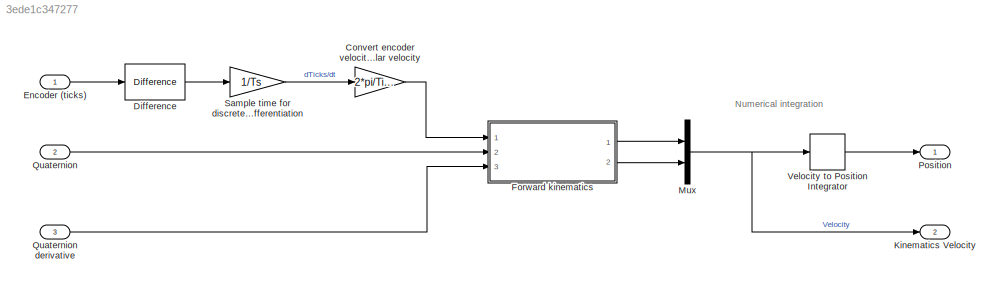
MODEL slx_3ede1c347277
KIND model
CONFIG AbsTol = auto
CONFIG EnableMultiTasking = off
CONFIG FixedStep = auto
CONFIG InitFcn = Constants_Kugle\nConstants_nominal\nParameters_General\nParameters_Controllers\nParameters_Simulation
CONFIG MaxStep = auto
CONFIG MinStep = auto
CONFIG PreLoadFcn = modelDir = fileparts(get_param(bdroot, 'FileName'));\naddpath(fullfile(modelDir,'../../Parameters'));\naddpath(fullfile(modelDir,'../../Model/generated'));\n\nConstants_Kugle\nConstants_nominal\nParameters_General\nParameters_Controllers\nParameters_Simulation
CONFIG RelTol = 1e-3
CONFIG SampleTimeConstraint = Unconstrained
CONFIG Solver = VariableStepAuto
CONFIG SolverName = VariableStepAuto
CONFIG StartTime = 0.0
CONFIG StopTime = 10.0
BLOCK [Gain] Convert encoder velocity to angular velocity
  Gain = 2*pi/TicksPrRev
  OutDataTypeStr = Inherit: Inherit via internal rule
  ParamDataTypeStr = Inherit: Inherit via internal rule
  SaturateOnIntegerOverflow = off
BLOCK [Reference] Difference   REF=simulink/Discrete/Difference
  Ports = [1, 1]
  SourceBlock = simulink/Discrete/Difference
  SourceProductBaseCode = SL
  SourceProductName = Simulink
  SourceType = Difference
BLOCK [Inport] Encoder (ticks)
  IconDisplay = Port number
  PortDimensions = 3
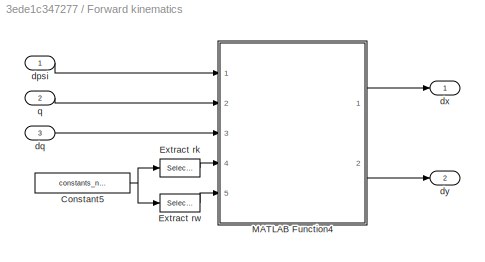
BLOCK [SubSystem] Forward kinematics
  Ports = [3, 2]
  RequestExecContextInheritance = off
BLOCK [Constant] Forward kinematics/Constant5
  Value = constants_nominal
BLOCK [Selector] Forward kinematics/Extract rk
  IndexOptions = Index vector (dialog)
  Indices = [3]
  InputPortWidth = 13
  OutputSizes = 1
  Ports = [1, 1]
BLOCK [Selector] Forward kinematics/Extract rw
  IndexOptions = Index vector (dialog)
  Indices = [9]
  InputPortWidth = 13
  OutputSizes = 1
  Ports = [1, 1]
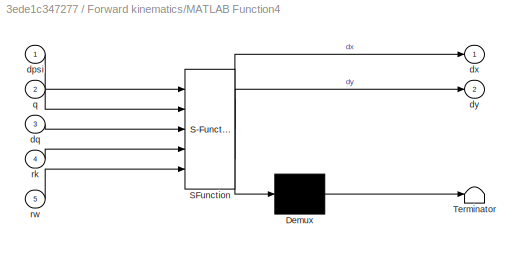
BLOCK [SubSystem] Forward kinematics/MATLAB Function4
  ErrorFcn = Stateflow.Translate.translate
  PermitHierarchicalResolution = ExplicitOnly
  Ports = [5, 2]
  RequestExecContextInheritance = off
  SFBlockType = MATLAB Function
  TreatAsAtomicUnit = on
BLOCK [Demux] Forward kinematics/MATLAB Function4/ Demux 
  Outputs = 1
  Ports = [1, 1]
BLOCK [S-Function] Forward kinematics/MATLAB Function4/ SFunction 
  EnableBusSupport = on
  FunctionName = sf_sfun
  PortCounts = [5 3]
  Ports = [5, 3]
  SFcnIsStateOwnerBlock = off
  SFunctionDeploymentMode = off
  Tag = Stateflow S-Function KinematicsIntegration 28
BLOCK [Terminator] Forward kinematics/MATLAB Function4/ Terminator 
BLOCK [Inport] Forward kinematics/MATLAB Function4/dpsi
  IconDisplay = Port number
BLOCK [Inport] Forward kinematics/MATLAB Function4/dq
  IconDisplay = Port number
  Port = 3
BLOCK [Outport] Forward kinematics/MATLAB Function4/dx
  IconDisplay = Port number
BLOCK [Outport] Forward kinematics/MATLAB Function4/dy
  IconDisplay = Port number
  Port = 2
BLOCK [Inport] Forward kinematics/MATLAB Function4/q
  IconDisplay = Port number
  Port = 2
BLOCK [Inport] Forward kinematics/MATLAB Function4/rk
  IconDisplay = Port number
  Port = 4
BLOCK [Inport] Forward kinematics/MATLAB Function4/rw
  IconDisplay = Port number
  Port = 5
BLOCK [Inport] Forward kinematics/dpsi
  IconDisplay = Port number
BLOCK [Inport] Forward kinematics/dq
  IconDisplay = Port number
  Port = 3
BLOCK [Outport] Forward kinematics/dx
  IconDisplay = Port number
BLOCK [Outport] Forward kinematics/dy
  IconDisplay = Port number
  Port = 2
BLOCK [Inport] Forward kinematics/q
  IconDisplay = Port number
  Port = 2
BLOCK [Outport] Kinematics Velocity
  IconDisplay = Port number
  Port = 2
BLOCK [Mux] Mux
  DisplayOption = bar
  Inputs = 2
  Ports = [2, 1]
BLOCK [Outport] Position
  IconDisplay = Port number
BLOCK [Inport] Quaternion
  IconDisplay = Port number
  Port = 2
BLOCK [Inport] Quaternion derivative
  IconDisplay = Port number
  Port = 3
BLOCK [Gain] Sample time for discrete differentiation
  Gain = 1/Ts
  OutDataTypeStr = Inherit: Inherit via internal rule
  ParamDataTypeStr = Inherit: Inherit via internal rule
  SaturateOnIntegerOverflow = off
BLOCK [DiscreteIntegrator] Velocity to Position Integrator
  ICPrevOutput = DiscIntNeverNeededParam
  ICPrevScaledInput = DiscIntNeverNeededParam
  InitialCondition = x_init(1:2)
  InitialConditionSetting = Auto
  Ports = [1, 1]
  SampleTime = Ts
ANNOTATION (root): Numerical integration
LINE Convert encoder velocity to angular velocity:1 -> Forward kinematics:1
LINE Difference :1 -> Sample time for discrete differentiation:1
LINE Encoder (ticks):1 -> Difference :1
NET Forward kinematics/Constant5:1 -> Forward kinematics/Extract rk:1, Forward kinematics/Extract rw:1
LINE Forward kinematics/Extract rk:1 -> Forward kinematics/MATLAB Function4:4
LINE Forward kinematics/Extract rw:1 -> Forward kinematics/MATLAB Function4:5
LINE Forward kinematics/MATLAB Function4:1 -> Forward kinematics/dx:1
LINE Forward kinematics/MATLAB Function4:2 -> Forward kinematics/dy:1
LINE Forward kinematics/dpsi:1 -> Forward kinematics/MATLAB Function4:1
LINE Forward kinematics/dq:1 -> Forward kinematics/MATLAB Function4:3
LINE Forward kinematics/q:1 -> Forward kinematics/MATLAB Function4:2
LINE Forward kinematics:1 -> Mux:1
LINE Forward kinematics:2 -> Mux:2
NET Mux:1 -> Kinematics Velocity:1, Velocity to Position Integrator:1
LINE Quaternion derivative:1 -> Forward kinematics:3
LINE Quaternion:1 -> Forward kinematics:2
LINE Sample time for discrete differentiation:1 -> Convert encoder velocity to angular velocity:1
LINE Velocity to Position Integrator:1 -> Position:1
note: NET lines group one-source signal fan-out (src -> all destinations, sorted); 1:1 wires keep LINE
CHART Forward kinematics/MATLAB Function4 states=1 transitions=1
  STATE_LABEL 'eML_blk_kernel()'
  STATE_LABEL 'SCRIPT:\nfunction [dx, dy] = ForwardKinematics(dpsi,q,dq,rk,rw)\n\nq1 = q(1);\nq2 = q(2);\nq3 = q(3);\nq4 = q(4);\n\ndq1 = dq(1);\ndq2 = dq(2);\ndq3 = dq(3);\ndq4 = dq(4);\n\ndpsi1 = dpsi(1);\ndpsi2 = dpsi(2);\ndpsi3 = dpsi(3);\n\ndxdy = ForwardKinematics(dpsi1,dpsi2,dpsi3,dq1,dq2,dq3,dq4,q1,q2,q3,q4,rk,rw);\n\ndx = dxdy(1);\ndy = dxdy(2);'
